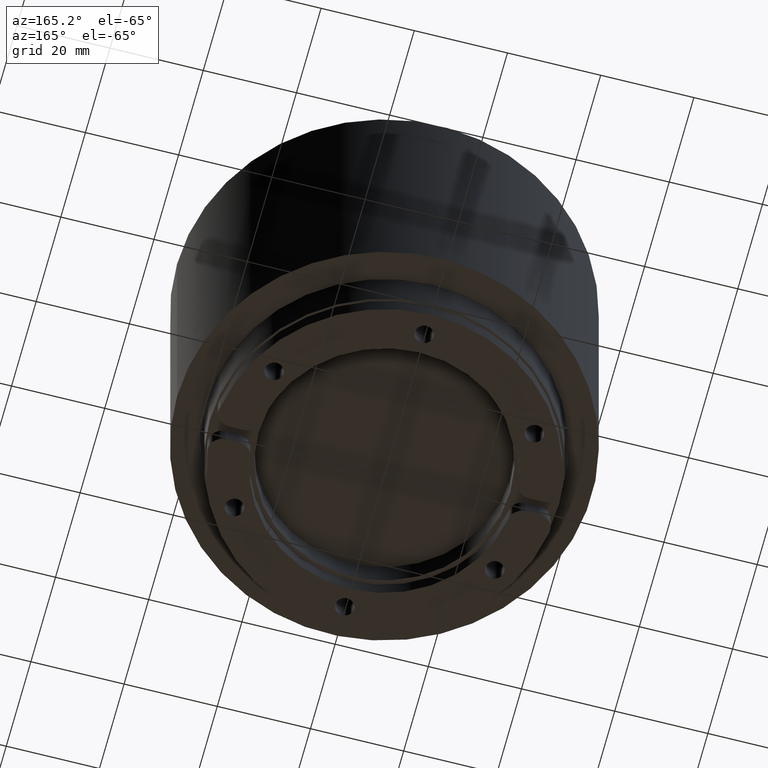
[diagram: clean part render]
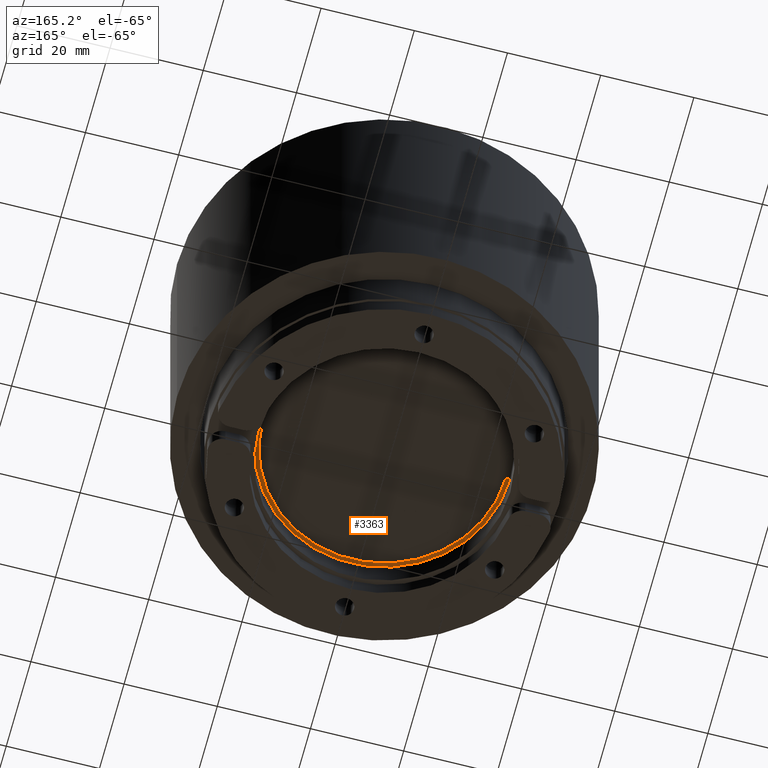
[diagram: same view with one face highlighted and labeled with its STEP entity id]
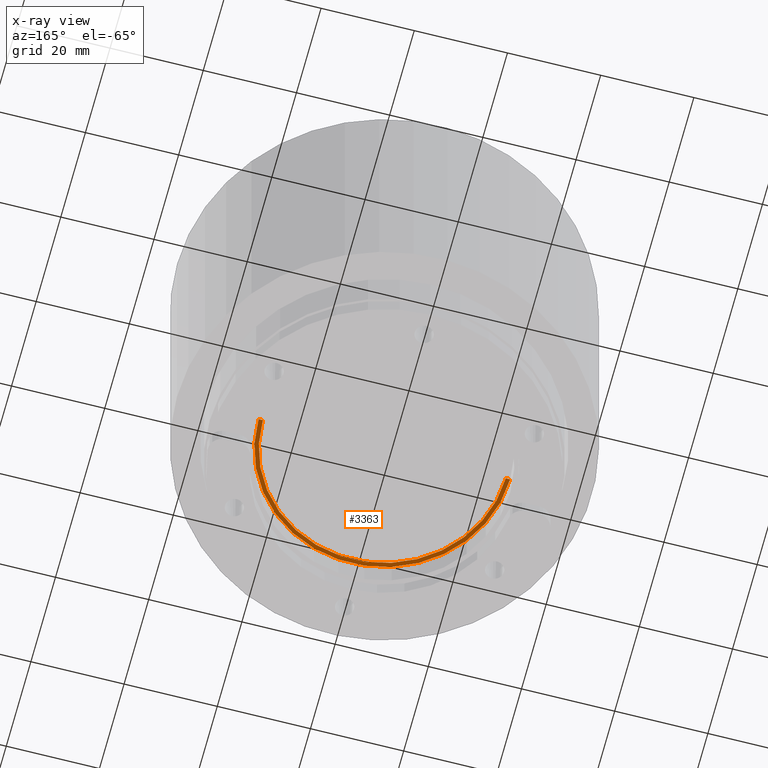
[diagram: x-ray of the same camera — body ghosted, the highlighted face saturated]
A machine part, auxiliary view. The second image highlights one B-rep face of the part: STEP entity #3363.
The next image is the same camera in x-ray: the body ghosted, the highlighted face saturated — about 0% of this face is hidden behind the body in this view.
In plain terms, the highlighted planar face has unit normal (0, 0, -1).
Its self-contained STEP definition (entity closure, byte-faithful):
#3305=CARTESIAN_POINT('',(30.0,-2.688658E-015,27.0));
#3306=VERTEX_POINT('',#3305);
#3313=CARTESIAN_POINT('',(30.0,5.995204E-015,-27.0));
#3314=VERTEX_POINT('',#3313);
#3315=CARTESIAN_POINT('',(30.0,0.0,0.0));
#3316=DIRECTION('',(1.0,0.0,0.0));
#3317=DIRECTION('',(0.0,0.0,-1.0));
#3318=AXIS2_PLACEMENT_3D('',#3315,#3316,#3317);
#3319=CIRCLE('',#3318,27.0);
#3320=EDGE_CURVE('',#3314,#3306,#3319,.T.);
#3332=CARTESIAN_POINT('',(30.0,5.891121E-015,-26.53125));
#3333=DIRECTION('',(1.0,0.0,0.0));
#3334=DIRECTION('',(0.0,-1.0,0.0));
#3335=AXIS2_PLACEMENT_3D('',#3332,#3333,#3334);
#3336=PLANE('',#3335);
#3337=CARTESIAN_POINT('',(30.0,-2.595302E-015,26.0625));
#3338=VERTEX_POINT('',#3337);
#3339=CARTESIAN_POINT('',(30.0,-2.688658E-015,27.0));
#3340=DIRECTION('',(0.0,0.0,-1.0));
#3341=VECTOR('',#3340,0.9375);
#3342=LINE('',#3339,#3341);
#3343=EDGE_CURVE('',#3306,#3338,#3342,.T.);
#3344=ORIENTED_EDGE('',*,*,#3343,.T.);
#3345=CARTESIAN_POINT('',(30.0,5.787038E-015,-26.0625));
#3346=VERTEX_POINT('',#3345);
#3347=CARTESIAN_POINT('',(30.0,0.0,0.0));
#3348=DIRECTION('',(1.0,0.0,0.0));
#3349=DIRECTION('',(0.0,0.0,-1.0));
#3350=AXIS2_PLACEMENT_3D('',#3347,#3348,#3349);
#3351=CIRCLE('',#3350,26.0625);
#3352=EDGE_CURVE('',#3346,#3338,#3351,.T.);
#3353=ORIENTED_EDGE('',*,*,#3352,.F.);
#3354=CARTESIAN_POINT('',(30.0,5.995204E-015,-27.0));
#3355=DIRECTION('',(0.0,0.0,1.0));
#3356=VECTOR('',#3355,0.9375);
#3357=LINE('',#3354,#3356);
#3358=EDGE_CURVE('',#3314,#3346,#3357,.T.);
#3359=ORIENTED_EDGE('',*,*,#3358,.F.);
#3360=ORIENTED_EDGE('',*,*,#3320,.T.);
#3361=EDGE_LOOP('',(#3344,#3353,#3359,#3360));
#3362=FACE_OUTER_BOUND('',#3361,.T.);
#3363=ADVANCED_FACE('',(#3362),#3336,.T.);